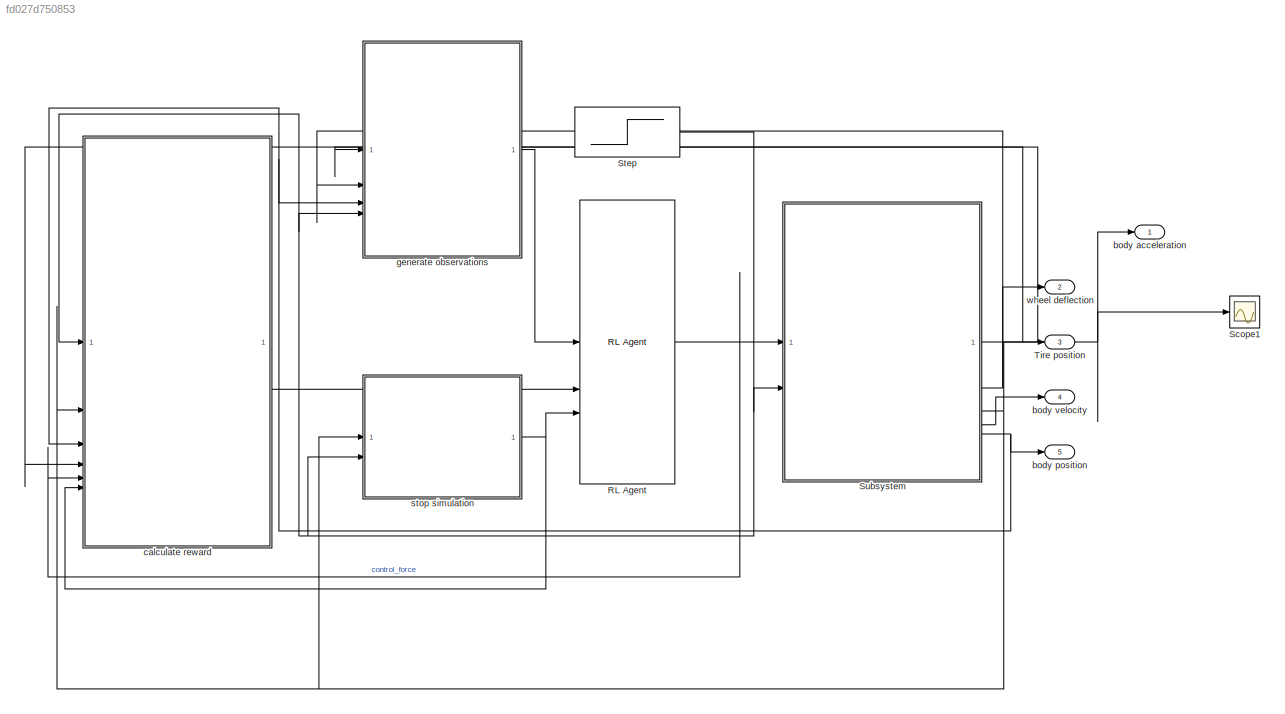
MODEL slx_fd027d750853
KIND model
CONFIG AbsTol = auto
CONFIG EnableMultiTasking = off
CONFIG FixedStep = auto
CONFIG MaxStep = auto
CONFIG MinStep = auto
CONFIG RelTol = 1e-3
CONFIG SampleTimeConstraint = Unconstrained
CONFIG SolverName = VariableStepAuto
CONFIG StartTime = 0.0
CONFIG StopTime = 10
BLOCK [Reference] RL Agent  REF=rllib/RL Agent
  SourceBlock = rllib/RL Agent
  SourceType = RL Agent
BLOCK [Scope] Scope1
  Floating = off
  NumInputPorts = 1
  ScopeSpecificationString = Simulink.scopes.TimeScopeBlockCfg('CurrentConfiguration', extmgr.ConfigurationSet(extmgr.Configuration('Core','General UI',true),extmgr.Configuration('Core','Source UI',true),extmgr.Configuration('Sources','WiredSimulink',true,'DataLoggingVariableName','ScopeData7'),extmgr.Configuration('Visuals','Time Domain',true,'SerializedDisplays',{struct('MinYLimReal','-57.11411','MaxYLimReal','57.11623','YL...<+1444ch>
BLOCK [Step] Step
  SampleTime = 0
  Time = 0
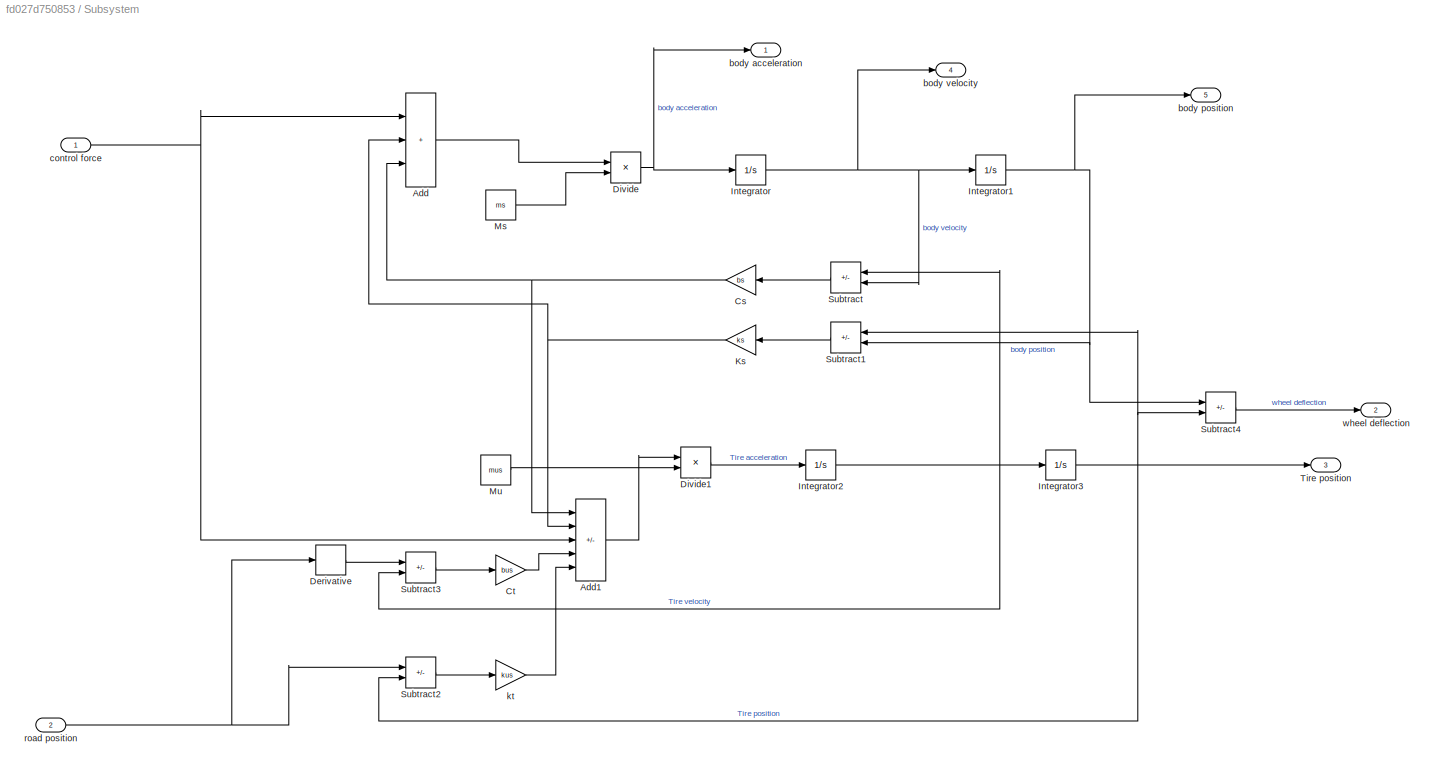
BLOCK [SubSystem] Subsystem
BLOCK [Sum] Subsystem/Add
  IconShape = rectangular
  Inputs = +++
BLOCK [Sum] Subsystem/Add1
  IconShape = rectangular
  Inputs = ---++
BLOCK [Gain] Subsystem/Cs
  Gain = bs
BLOCK [Gain] Subsystem/Ct
  Gain = bus
BLOCK [Derivative] Subsystem/Derivative
BLOCK [Product] Subsystem/Divide
  Inputs = */
BLOCK [Product] Subsystem/Divide1
  Inputs = */
BLOCK [Integrator] Subsystem/Integrator
BLOCK [Integrator] Subsystem/Integrator1
BLOCK [Integrator] Subsystem/Integrator2
BLOCK [Integrator] Subsystem/Integrator3
BLOCK [Gain] Subsystem/Ks
  Gain = ks
BLOCK [Constant] Subsystem/Ms
  Value = ms
BLOCK [Constant] Subsystem/Mu
  Value = mus
BLOCK [Sum] Subsystem/Subtract
  IconShape = rectangular
  Inputs = +-
BLOCK [Sum] Subsystem/Subtract1
  IconShape = rectangular
  Inputs = +-
BLOCK [Sum] Subsystem/Subtract2
  IconShape = rectangular
  Inputs = +-
BLOCK [Sum] Subsystem/Subtract3
  IconShape = rectangular
  Inputs = +-
BLOCK [Sum] Subsystem/Subtract4
  IconShape = rectangular
  Inputs = +-
BLOCK [Outport] Subsystem/Tire position
  Port = 3
BLOCK [Outport] Subsystem/body acceleration
BLOCK [Outport] Subsystem/body position
  Port = 5
BLOCK [Outport] Subsystem/body velocity
  Port = 4
BLOCK [Inport] Subsystem/control force
BLOCK [Gain] Subsystem/kt
  Gain = kus
BLOCK [Inport] Subsystem/road position
  Port = 2
BLOCK [Outport] Subsystem/wheel deflection
  Port = 2
BLOCK [Outport] Tire position
  Port = 3
BLOCK [Outport] body acceleration
BLOCK [Outport] body position
  Port = 5
BLOCK [Outport] body velocity
  Port = 4
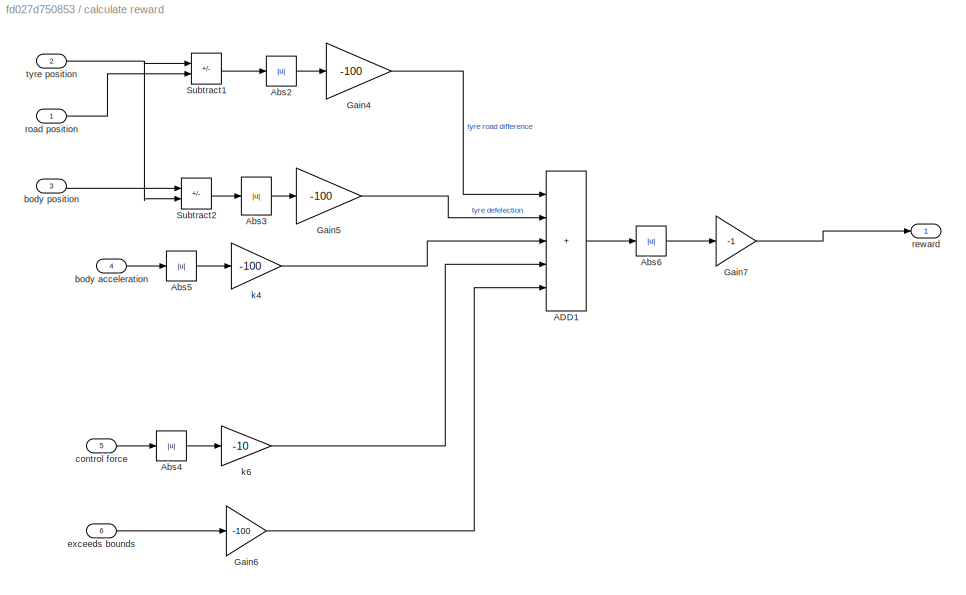
BLOCK [SubSystem] calculate reward
BLOCK [Sum] calculate reward/ADD1
  IconShape = rectangular
  Inputs = +++++
BLOCK [Abs] calculate reward/Abs2
  Commented = on
  SaturateOnIntegerOverflow = off
BLOCK [Abs] calculate reward/Abs3
  SaturateOnIntegerOverflow = off
BLOCK [Abs] calculate reward/Abs4
  SaturateOnIntegerOverflow = off
BLOCK [Abs] calculate reward/Abs5
  Commented = on
  SaturateOnIntegerOverflow = off
BLOCK [Abs] calculate reward/Abs6
  SaturateOnIntegerOverflow = off
BLOCK [Gain] calculate reward/Gain4
  Commented = on
  Gain = -100
BLOCK [Gain] calculate reward/Gain5
  Gain = -100
BLOCK [Gain] calculate reward/Gain6
  Gain = -100
BLOCK [Gain] calculate reward/Gain7
  Gain = -1
BLOCK [Sum] calculate reward/Subtract1
  Commented = on
  IconShape = rectangular
  Inputs = +-
BLOCK [Sum] calculate reward/Subtract2
  IconShape = rectangular
  Inputs = +-
BLOCK [Inport] calculate reward/body acceleration
  Port = 4
BLOCK [Inport] calculate reward/body position
  Port = 3
BLOCK [Inport] calculate reward/control force
  Port = 5
BLOCK [Inport] calculate reward/exceeds bounds
  Port = 6
BLOCK [Gain] calculate reward/k4
  Commented = on
  Gain = -100
BLOCK [Gain] calculate reward/k6
  Gain = -10
BLOCK [Outport] calculate reward/reward
  VectorParamsAs1DForOutWhenUnconnected = off
BLOCK [Inport] calculate reward/road position
BLOCK [Inport] calculate reward/tyre position
  Port = 2
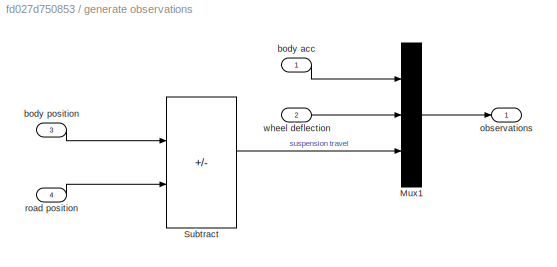
BLOCK [SubSystem] generate observations
BLOCK [Mux] generate observations/Mux1
  DisplayOption = bar
  Inputs = 3
BLOCK [Sum] generate observations/Subtract
  IconShape = rectangular
  Inputs = +-
BLOCK [Inport] generate observations/body acc
BLOCK [Inport] generate observations/body position
  Port = 3
BLOCK [Outport] generate observations/observations
  VectorParamsAs1DForOutWhenUnconnected = off
BLOCK [Inport] generate observations/road position
  Port = 4
BLOCK [Inport] generate observations/wheel deflection
  Port = 2
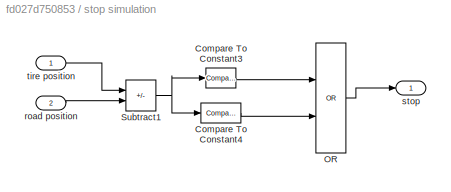
BLOCK [SubSystem] stop simulation
BLOCK [Reference] stop simulation/Compare To Constant3  REF=simulink/Logic and Bit
Operations/Compare
To Constant
  SourceBlock = simulink/Logic and Bit\nOperations/Compare\nTo Constant
  SourceType = Compare To Constant
BLOCK [Reference] stop simulation/Compare To Constant4  REF=simulink/Logic and Bit
Operations/Compare
To Constant
  SourceBlock = simulink/Logic and Bit\nOperations/Compare\nTo Constant
  SourceType = Compare To Constant
BLOCK [Logic] stop simulation/OR
  AllPortsSameDT = off
  IconShape = distinctive
  Operator = OR
  OutDataTypeStr = boolean
BLOCK [Sum] stop simulation/Subtract1
  IconShape = rectangular
  Inputs = +-
BLOCK [Inport] stop simulation/road position
  Port = 2
BLOCK [Outport] stop simulation/stop
  VectorParamsAs1DForOutWhenUnconnected = off
BLOCK [Inport] stop simulation/tire position
BLOCK [Outport] wheel deflection
  Port = 2
NET RL Agent:1 -> Subsystem:1, calculate reward:5
NET Step:1 -> Subsystem:2, calculate reward:1, generate observations:4, stop simulation:2
LINE Subsystem/Add1:1 -> Subsystem/Divide1:1
LINE Subsystem/Add:1 -> Subsystem/Divide:1
NET Subsystem/Cs:1 -> Subsystem/Add1:1, Subsystem/Add:3
LINE Subsystem/Ct:1 -> Subsystem/Add1:4
LINE Subsystem/Derivative:1 -> Subsystem/Subtract3:1
LINE Subsystem/Divide1:1 -> Subsystem/Integrator2:1
NET Subsystem/Divide:1 -> Subsystem/Integrator:1, Subsystem/body acceleration:1
NET Subsystem/Integrator1:1 -> Subsystem/Subtract1:2, Subsystem/Subtract4:1, Subsystem/body position:1
NET Subsystem/Integrator2:1 -> Subsystem/Integrator3:1, Subsystem/Subtract3:2, Subsystem/Subtract:1
NET Subsystem/Integrator3:1 -> Subsystem/Subtract1:1, Subsystem/Subtract2:2, Subsystem/Subtract4:2, Subsystem/Tire position:1
NET Subsystem/Integrator:1 -> Subsystem/Integrator1:1, Subsystem/Subtract:2, Subsystem/body velocity:1
NET Subsystem/Ks:1 -> Subsystem/Add1:2, Subsystem/Add:2
LINE Subsystem/Ms:1 -> Subsystem/Divide:2
LINE Subsystem/Mu:1 -> Subsystem/Divide1:2
LINE Subsystem/Subtract1:1 -> Subsystem/Ks:1
LINE Subsystem/Subtract2:1 -> Subsystem/kt:1
LINE Subsystem/Subtract3:1 -> Subsystem/Ct:1
LINE Subsystem/Subtract4:1 -> Subsystem/wheel deflection:1
LINE Subsystem/Subtract:1 -> Subsystem/Cs:1
NET Subsystem/control force:1 -> Subsystem/Add1:3, Subsystem/Add:1
LINE Subsystem/kt:1 -> Subsystem/Add1:5
NET Subsystem/road position:1 -> Subsystem/Derivative:1, Subsystem/Subtract2:1
NET Subsystem:1 -> Scope1:1, body acceleration:1, calculate reward:4, generate observations:1
NET Subsystem:2 -> generate observations:2, wheel deflection:1
NET Subsystem:3 -> Tire position:1, calculate reward:2, stop simulation:1
LINE Subsystem:4 -> body velocity:1
NET Subsystem:5 -> body position:1, calculate reward:3, generate observations:3
LINE calculate reward/ADD1:1 -> calculate reward/Abs6:1
LINE calculate reward/Abs2:1 -> calculate reward/Gain4:1
LINE calculate reward/Abs3:1 -> calculate reward/Gain5:1
LINE calculate reward/Abs4:1 -> calculate reward/k6:1
LINE calculate reward/Abs5:1 -> calculate reward/k4:1
LINE calculate reward/Abs6:1 -> calculate reward/Gain7:1
LINE calculate reward/Gain4:1 -> calculate reward/ADD1:1
LINE calculate reward/Gain5:1 -> calculate reward/ADD1:2
LINE calculate reward/Gain6:1 -> calculate reward/ADD1:5
LINE calculate reward/Gain7:1 -> calculate reward/reward:1
LINE calculate reward/Subtract1:1 -> calculate reward/Abs2:1
LINE calculate reward/Subtract2:1 -> calculate reward/Abs3:1
LINE calculate reward/body acceleration:1 -> calculate reward/Abs5:1
LINE calculate reward/body position:1 -> calculate reward/Subtract2:1
LINE calculate reward/control force:1 -> calculate reward/Abs4:1
LINE calculate reward/exceeds bounds:1 -> calculate reward/Gain6:1
LINE calculate reward/k4:1 -> calculate reward/ADD1:3
LINE calculate reward/k6:1 -> calculate reward/ADD1:4
LINE calculate reward/road position:1 -> calculate reward/Subtract1:2
NET calculate reward/tyre position:1 -> calculate reward/Subtract1:1, calculate reward/Subtract2:2
LINE calculate reward:1 -> RL Agent:2
LINE generate observations/Mux1:1 -> generate observations/observations:1
LINE generate observations/Subtract:1 -> generate observations/Mux1:3
LINE generate observations/body acc:1 -> generate observations/Mux1:1
LINE generate observations/body position:1 -> generate observations/Subtract:1
LINE generate observations/road position:1 -> generate observations/Subtract:2
LINE generate observations/wheel deflection:1 -> generate observations/Mux1:2
LINE generate observations:1 -> RL Agent:1
LINE stop simulation/Compare To Constant3:1 -> stop simulation/OR:1
LINE stop simulation/Compare To Constant4:1 -> stop simulation/OR:2
LINE stop simulation/OR:1 -> stop simulation/stop:1
NET stop simulation/Subtract1:1 -> stop simulation/Compare To Constant3:1, stop simulation/Compare To Constant4:1
LINE stop simulation/road position:1 -> stop simulation/Subtract1:2
LINE stop simulation/tire position:1 -> stop simulation/Subtract1:1
NET stop simulation:1 -> RL Agent:3, calculate reward:6
note: NET lines group one-source signal fan-out (src -> all destinations, sorted); 1:1 wires keep LINE
